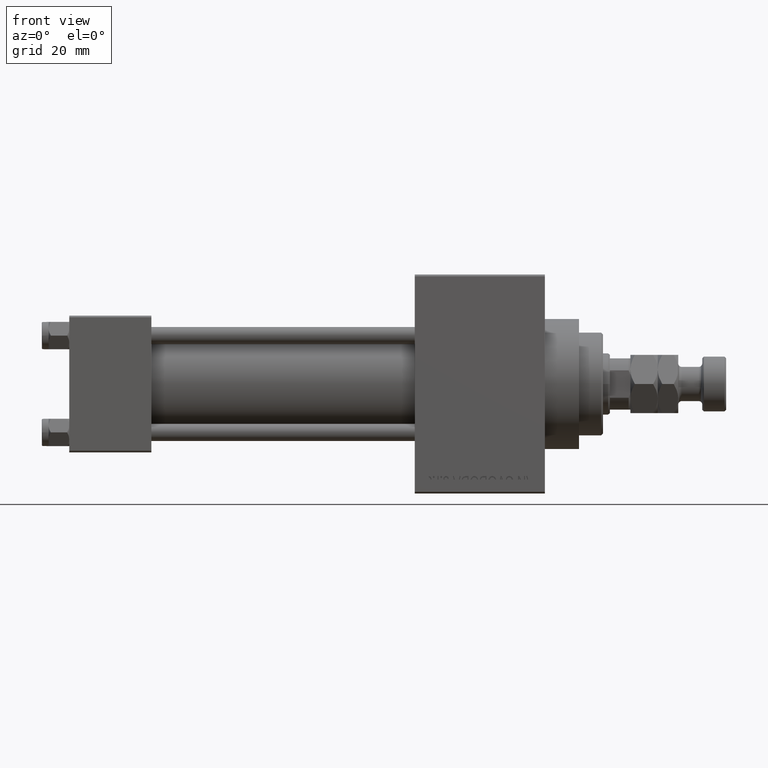
[diagram: clean part render]
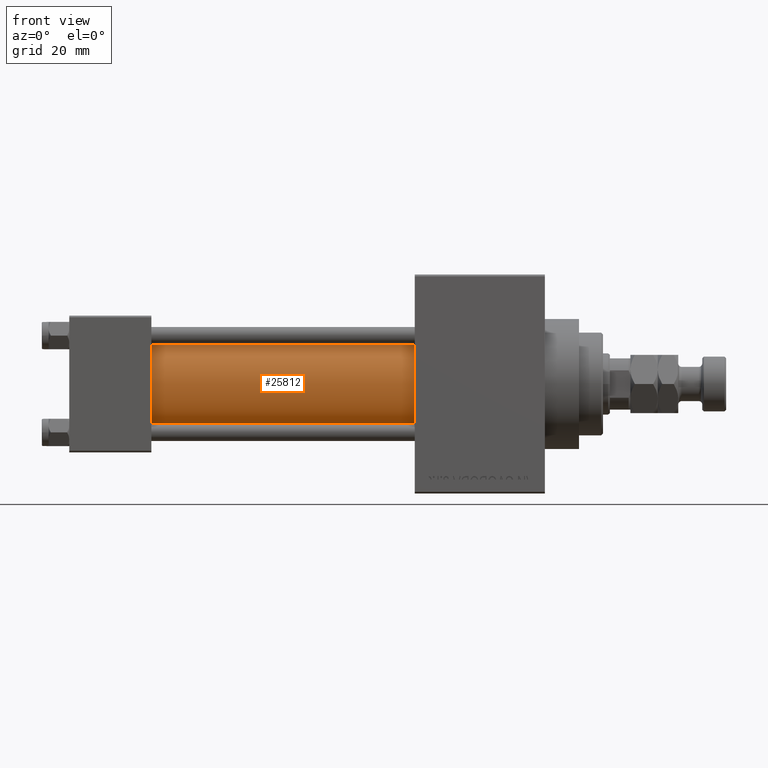
[diagram: same view with one face highlighted and labeled with its STEP entity id]
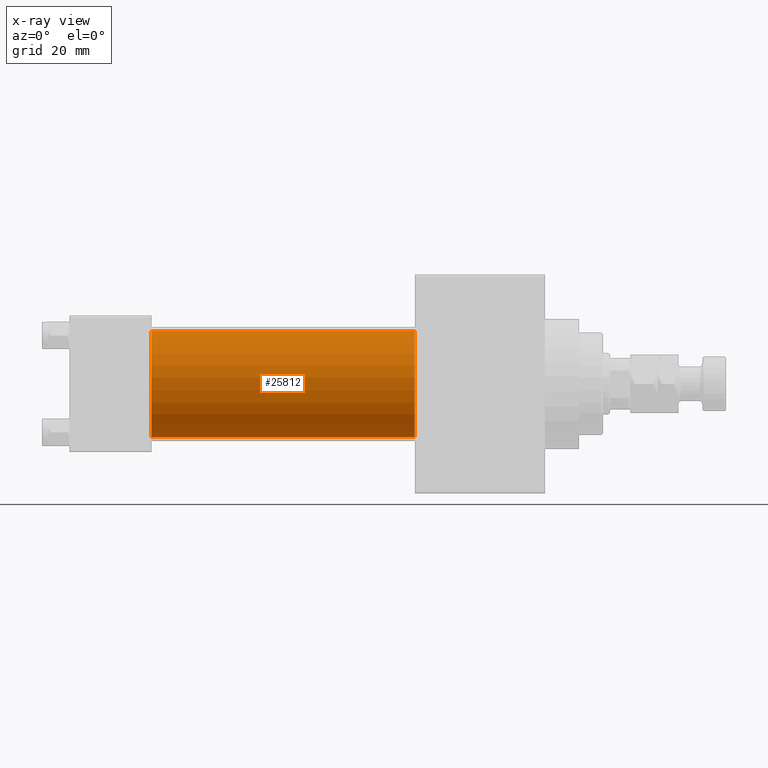
[diagram: x-ray of the same camera — body ghosted, the highlighted face saturated]
A machine part, front view. The second image highlights one B-rep face of the part: STEP entity #25812.
The next image is the same camera in x-ray: the body ghosted, the highlighted face saturated — about 0% of this face is hidden behind the body in this view.
In plain terms, the highlighted cylindrical surface (partial cylindrical patch) has radius 15.5 mm, axis along (-1, -0, -0).
Its self-contained STEP definition (entity closure, byte-faithful):
#874 = CARTESIAN_POINT ( 'NONE',  ( 23.99999999999999289, -2.602085213965210642E-15, 15.50000000000000000 ) ) ;
#1844 = CARTESIAN_POINT ( 'NONE',  ( 101.0000000000000000, -7.038826752868131828E-16, -15.50000000000000000 ) ) ;
#2845 = CARTESIAN_POINT ( 'NONE',  ( 101.0000000000000000, -7.038826752868131828E-16, -15.50000000000000000 ) ) ;
#5467 = DIRECTION ( 'NONE',  ( -1.000000000000000000, -0.000000000000000000, -0.000000000000000000 ) ) ;
#6385 = DIRECTION ( 'NONE',  ( 1.000000000000000000, 0.000000000000000000, 0.000000000000000000 ) ) ;
#8174 = CARTESIAN_POINT ( 'NONE',  ( 23.99999999999999289, -2.602085213965210642E-15, 0.000000000000000000 ) ) ;
#10793 = CARTESIAN_POINT ( 'NONE',  ( 101.0000000000000000, -2.602085213965210642E-15, 15.50000000000000000 ) ) ;
#11871 = DIRECTION ( 'NONE',  ( 1.000000000000000000, 0.000000000000000000, 0.000000000000000000 ) ) ;
#13610 = FACE_OUTER_BOUND ( 'NONE', #41349, .T. ) ;
#15329 = DIRECTION ( 'NONE',  ( -1.000000000000000000, -0.000000000000000000, -0.000000000000000000 ) ) ;
#15573 = DIRECTION ( 'NONE',  ( 0.000000000000000000, 0.000000000000000000, 1.000000000000000000 ) ) ;
#15805 = CARTESIAN_POINT ( 'NONE',  ( 101.0000000000000000, -2.602085213965210642E-15, 15.50000000000000000 ) ) ;
#16050 = LINE ( 'NONE', #15805, #37933 ) ;
#18302 = VECTOR ( 'NONE', #35375, 1000.000000000000000 ) ;
#19510 = VERTEX_POINT ( 'NONE', #874 ) ;
#19773 = AXIS2_PLACEMENT_3D ( 'NONE', #40159, #6385, #44829 ) ;
#24437 = EDGE_CURVE ( 'NONE', #19510, #41329, #36995, .T. ) ;
#24769 = CARTESIAN_POINT ( 'NONE',  ( 23.99999999999999289, -7.038826752868131828E-16, -15.50000000000000000 ) ) ;
#25812 = ADVANCED_FACE ( 'NONE', ( #13610 ), #32342, .T. ) ;
#27816 = EDGE_CURVE ( 'NONE', #39883, #32915, #47330, .T. ) ;
#28859 = EDGE_CURVE ( 'NONE', #39883, #19510, #16050, .T. ) ;
#32104 = CARTESIAN_POINT ( 'NONE',  ( 101.0000000000000000, -2.602085213965210642E-15, 0.000000000000000000 ) ) ;
#32315 = AXIS2_PLACEMENT_3D ( 'NONE', #32104, #5467, #36044 ) ;
#32342 = CYLINDRICAL_SURFACE ( 'NONE', #32315, 15.50000000000000000 ) ;
#32915 = VERTEX_POINT ( 'NONE', #2845 ) ;
#33283 = ORIENTED_EDGE ( 'NONE', *, *, #42300, .F. ) ;
#35375 = DIRECTION ( 'NONE',  ( -1.000000000000000000, -0.000000000000000000, -0.000000000000000000 ) ) ;
#36044 = DIRECTION ( 'NONE',  ( 0.000000000000000000, 0.000000000000000000, 1.000000000000000000 ) ) ;
#36995 = CIRCLE ( 'NONE', #47223, 15.50000000000000000 ) ;
#37933 = VECTOR ( 'NONE', #15329, 1000.000000000000000 ) ;
#39075 = LINE ( 'NONE', #1844, #18302 ) ;
#39883 = VERTEX_POINT ( 'NONE', #10793 ) ;
#40159 = CARTESIAN_POINT ( 'NONE',  ( 101.0000000000000000, -2.602085213965210642E-15, 0.000000000000000000 ) ) ;
#40584 = ORIENTED_EDGE ( 'NONE', *, *, #24437, .T. ) ;
#41329 = VERTEX_POINT ( 'NONE', #24769 ) ;
#41349 = EDGE_LOOP ( 'NONE', ( #33283, #47517, #43077, #40584 ) ) ;
#42300 = EDGE_CURVE ( 'NONE', #32915, #41329, #39075, .T. ) ;
#43077 = ORIENTED_EDGE ( 'NONE', *, *, #28859, .T. ) ;
#44829 = DIRECTION ( 'NONE',  ( 0.000000000000000000, 0.000000000000000000, -1.000000000000000000 ) ) ;
#47223 = AXIS2_PLACEMENT_3D ( 'NONE', #8174, #11871, #15573 ) ;
#47330 = CIRCLE ( 'NONE', #19773, 15.50000000000000000 ) ;
#47517 = ORIENTED_EDGE ( 'NONE', *, *, #27816, .F. ) ;